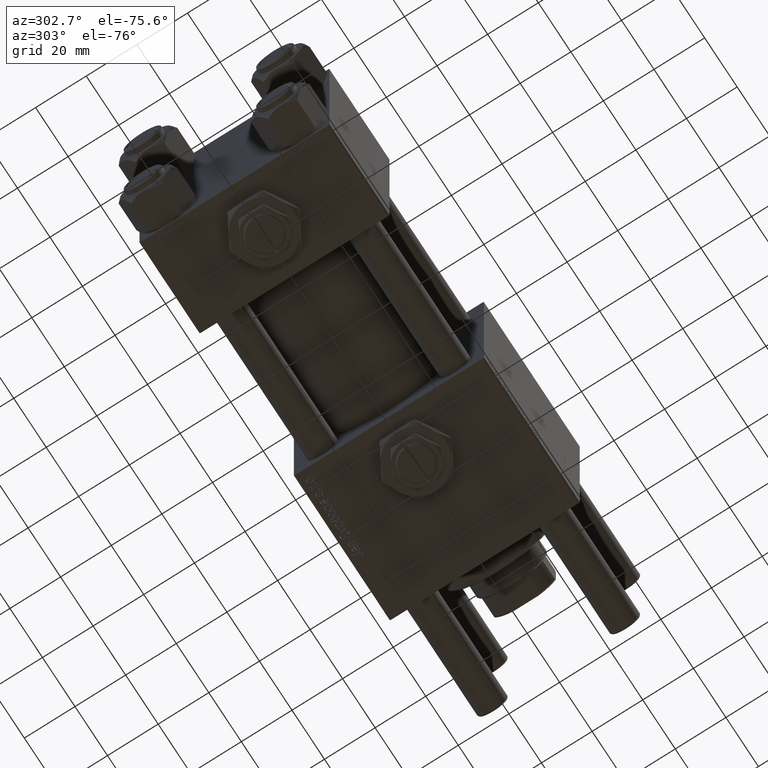
[diagram: clean part render]
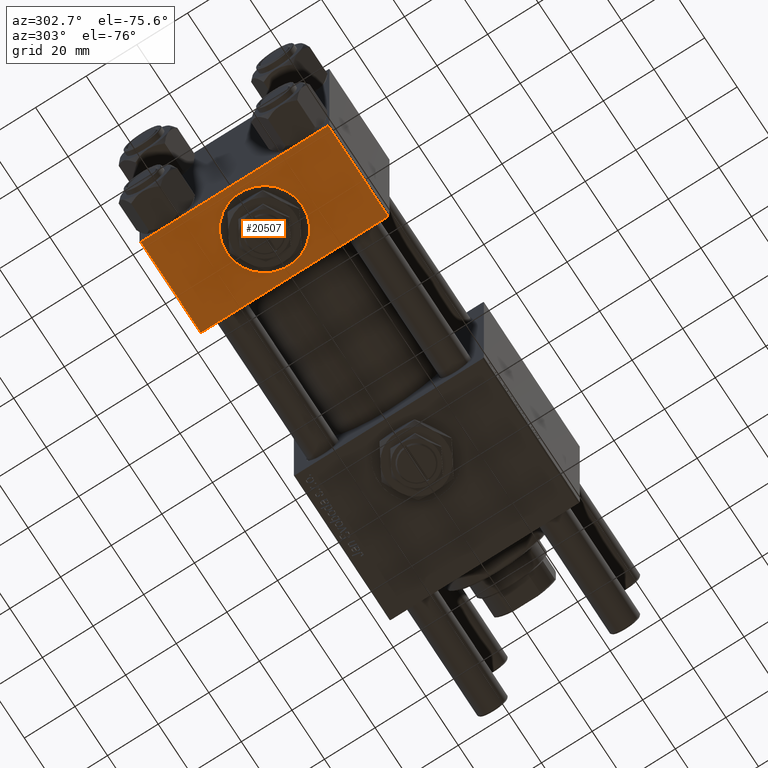
[diagram: same view with one face highlighted and labeled with its STEP entity id]
A machine part, auxiliary view. The second image highlights one B-rep face of the part: STEP entity #20507.
In plain terms, the highlighted planar face has unit normal (0, 0, -1).
Its self-contained STEP definition (entity closure, byte-faithful):
#245 = EDGE_LOOP ( 'NONE', ( #5618, #49151 ) ) ;
#1461 = VERTEX_POINT ( 'NONE', #57638 ) ;
#2344 = CARTESIAN_POINT ( 'NONE',  ( 18.50000000000001066, -15.00000000000000000, -37.50000000000000711 ) ) ;
#3562 = EDGE_CURVE ( 'NONE', #42542, #9201, #24865, .T. ) ;
#3801 = CARTESIAN_POINT ( 'NONE',  ( 0.000000000000000000, -37.00000000000002132, -37.50000000000000711 ) ) ;
#5216 = DIRECTION ( 'NONE',  ( 0.000000000000000000, 1.000000000000000000, 0.000000000000000000 ) ) ;
#5618 = ORIENTED_EDGE ( 'NONE', *, *, #37785, .F. ) ;
#6368 = VERTEX_POINT ( 'NONE', #28076 ) ;
#6774 = CIRCLE ( 'NONE', #8666, 15.00000000000000000 ) ;
#8666 = AXIS2_PLACEMENT_3D ( 'NONE', #57528, #38544, #56649 ) ;
#9201 = VERTEX_POINT ( 'NONE', #3801 ) ;
#10843 = CARTESIAN_POINT ( 'NONE',  ( 18.50000000000000711, 5.302946339999664916E-16, -37.50000000000000711 ) ) ;
#12224 = EDGE_CURVE ( 'NONE', #1461, #42542, #36949, .T. ) ;
#12786 = DIRECTION ( 'NONE',  ( 0.000000000000000000, 9.251858538542972814E-17, -1.000000000000000000 ) ) ;
#13783 = CARTESIAN_POINT ( 'NONE',  ( 37.00000000000000000, 37.49999999999999289, -37.50000000000000000 ) ) ;
#13933 = AXIS2_PLACEMENT_3D ( 'NONE', #17241, #12786, #26429 ) ;
#14698 = DIRECTION ( 'NONE',  ( 0.000000000000000000, -1.734723475976806848E-16, -1.000000000000000000 ) ) ;
#17241 = CARTESIAN_POINT ( 'NONE',  ( 37.00000000000000000, 37.49999999999999289, -37.50000000000000000 ) ) ;
#17395 = DIRECTION ( 'NONE',  ( 0.000000000000000000, -1.000000000000000000, -9.251858538542972814E-17 ) ) ;
#19447 = ORIENTED_EDGE ( 'NONE', *, *, #49540, .T. ) ;
#20445 = ORIENTED_EDGE ( 'NONE', *, *, #53648, .F. ) ;
#20507 = ADVANCED_FACE ( 'NONE', ( #52880, #58518 ), #53471, .T. ) ;
#22106 = VECTOR ( 'NONE', #52467, 1000.000000000000000 ) ;
#23556 = CIRCLE ( 'NONE', #52918, 15.00000000000000000 ) ;
#24234 = EDGE_LOOP ( 'NONE', ( #20445, #19447, #44106, #43184 ) ) ;
#24865 = LINE ( 'NONE', #38837, #22106 ) ;
#26429 = DIRECTION ( 'NONE',  ( 0.000000000000000000, 1.000000000000000000, 9.251858538542972814E-17 ) ) ;
#26582 = CARTESIAN_POINT ( 'NONE',  ( 0.000000000000000000, 37.49999999999999289, -37.50000000000000000 ) ) ;
#28076 = CARTESIAN_POINT ( 'NONE',  ( 0.000000000000000000, 36.99999999999997868, -37.50000000000000000 ) ) ;
#28954 = VECTOR ( 'NONE', #54254, 1000.000000000000000 ) ;
#29382 = EDGE_CURVE ( 'NONE', #30869, #38734, #23556, .T. ) ;
#30869 = VERTEX_POINT ( 'NONE', #2344 ) ;
#32035 = VECTOR ( 'NONE', #17395, 1000.000000000000000 ) ;
#35619 = VECTOR ( 'NONE', #37246, 1000.000000000000000 ) ;
#36949 = LINE ( 'NONE', #13783, #35619 ) ;
#37246 = DIRECTION ( 'NONE',  ( 0.000000000000000000, -1.000000000000000000, -9.251858538542972814E-17 ) ) ;
#37785 = EDGE_CURVE ( 'NONE', #38734, #30869, #6774, .T. ) ;
#38544 = DIRECTION ( 'NONE',  ( 0.000000000000000000, -1.734723475976806848E-16, -1.000000000000000000 ) ) ;
#38734 = VERTEX_POINT ( 'NONE', #54840 ) ;
#38837 = CARTESIAN_POINT ( 'NONE',  ( 0.000000000000000000, -37.00000000000002132, -37.50000000000000711 ) ) ;
#42542 = VERTEX_POINT ( 'NONE', #42610 ) ;
#42610 = CARTESIAN_POINT ( 'NONE',  ( 37.00000000000000000, -37.00000000000002132, -37.50000000000000711 ) ) ;
#43184 = ORIENTED_EDGE ( 'NONE', *, *, #3562, .T. ) ;
#43553 = LINE ( 'NONE', #26582, #32035 ) ;
#44106 = ORIENTED_EDGE ( 'NONE', *, *, #12224, .T. ) ;
#49151 = ORIENTED_EDGE ( 'NONE', *, *, #29382, .F. ) ;
#49540 = EDGE_CURVE ( 'NONE', #6368, #1461, #58723, .T. ) ;
#52467 = DIRECTION ( 'NONE',  ( -1.000000000000000000, 0.000000000000000000, 0.000000000000000000 ) ) ;
#52880 = FACE_BOUND ( 'NONE', #245, .T. ) ;
#52918 = AXIS2_PLACEMENT_3D ( 'NONE', #10843, #14698, #5216 ) ;
#53471 = PLANE ( 'NONE',  #13933 ) ;
#53648 = EDGE_CURVE ( 'NONE', #6368, #9201, #43553, .T. ) ;
#54254 = DIRECTION ( 'NONE',  ( 1.000000000000000000, 0.000000000000000000, 0.000000000000000000 ) ) ;
#54553 = CARTESIAN_POINT ( 'NONE',  ( 37.00000000000000000, 36.99999999999997868, -37.50000000000000000 ) ) ;
#54840 = CARTESIAN_POINT ( 'NONE',  ( 18.50000000000000711, 15.00000000000000000, -37.50000000000000711 ) ) ;
#56649 = DIRECTION ( 'NONE',  ( 0.000000000000000000, 1.000000000000000000, 0.000000000000000000 ) ) ;
#57528 = CARTESIAN_POINT ( 'NONE',  ( 18.50000000000000711, 5.302946339999664916E-16, -37.50000000000000711 ) ) ;
#57638 = CARTESIAN_POINT ( 'NONE',  ( 37.00000000000000000, 36.99999999999997868, -37.50000000000000000 ) ) ;
#58518 = FACE_OUTER_BOUND ( 'NONE', #24234, .T. ) ;
#58723 = LINE ( 'NONE', #54553, #28954 ) ;